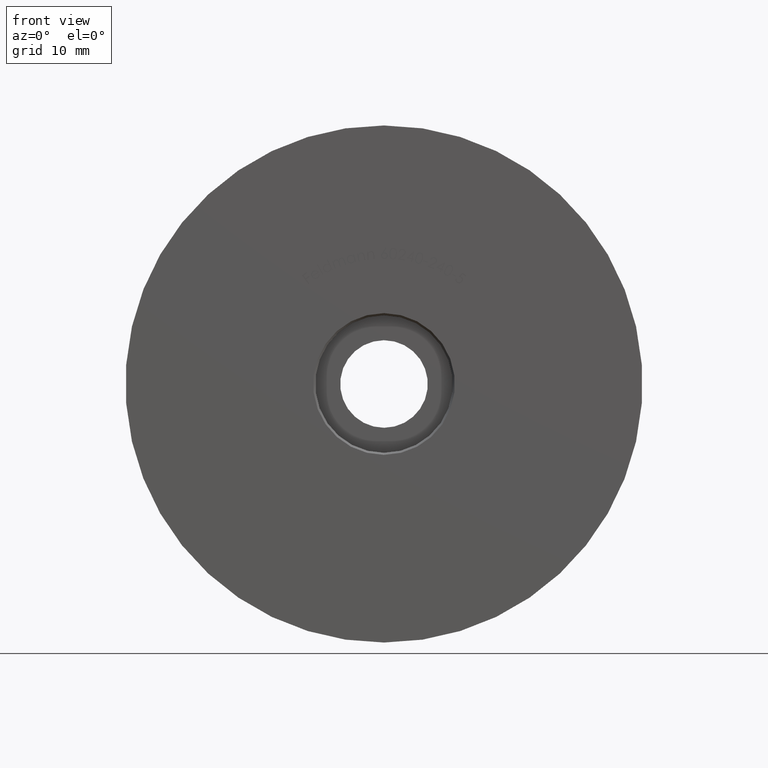
[diagram: clean part render]
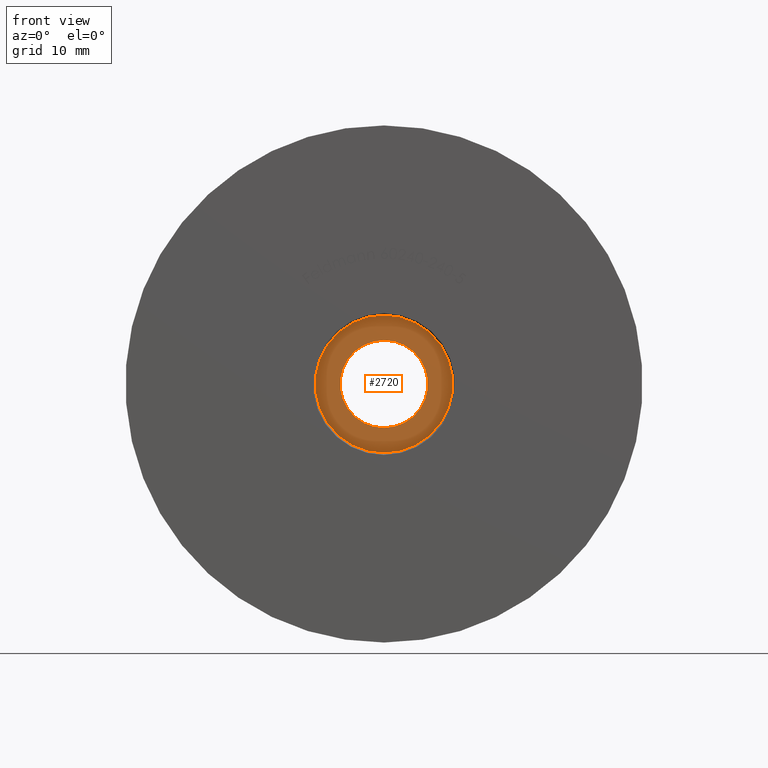
[diagram: same view with one face highlighted and labeled with its STEP entity id]
A machine part, front view. The second image highlights one B-rep face of the part: STEP entity #2720.
In plain terms, the highlighted planar face has unit normal (0, -1, 0).
Its self-contained STEP definition (entity closure, byte-faithful):
#283 = ORIENTED_EDGE ( 'NONE', *, *, #12563, .T. ) ;
#359 = CARTESIAN_POINT ( 'NONE',  ( 6.429395695523614014E-16, 2.500000000000000000, -5.250000000000007105 ) ) ;
#418 = EDGE_LOOP ( 'NONE', ( #283, #5936 ) ) ;
#978 = EDGE_CURVE ( 'NONE', #2253, #13709, #11765, .T. ) ;
#1348 = CARTESIAN_POINT ( 'NONE',  ( 0.000000000000000000, 2.500000000000000000, 0.000000000000000000 ) ) ;
#2253 = VERTEX_POINT ( 'NONE', #359 ) ;
#2653 = FACE_BOUND ( 'NONE', #418, .T. ) ;
#2720 = ADVANCED_FACE ( 'NONE', ( #2653, #4847 ), #11506, .T. ) ;
#3056 = CIRCLE ( 'NONE', #3410, 8.249999999999998224 ) ;
#3168 = DIRECTION ( 'NONE',  ( -0.000000000000000000, 1.000000000000000000, -0.000000000000000000 ) ) ;
#3410 = AXIS2_PLACEMENT_3D ( 'NONE', #12979, #3168, #9567 ) ;
#3601 = AXIS2_PLACEMENT_3D ( 'NONE', #8820, #10038, #12059 ) ;
#4019 = CIRCLE ( 'NONE', #3601, 5.250000000000007105 ) ;
#4363 = DIRECTION ( 'NONE',  ( 0.000000000000000000, 0.000000000000000000, 1.000000000000000000 ) ) ;
#4494 = EDGE_LOOP ( 'NONE', ( #13047, #8325 ) ) ;
#4847 = FACE_OUTER_BOUND ( 'NONE', #4494, .T. ) ;
#4854 = EDGE_CURVE ( 'NONE', #13510, #8729, #11560, .T. ) ;
#5619 = AXIS2_PLACEMENT_3D ( 'NONE', #10330, #8174, #12447 ) ;
#5655 = CARTESIAN_POINT ( 'NONE',  ( 0.000000000000000000, 2.500000000000000000, 8.249999999999998224 ) ) ;
#5936 = ORIENTED_EDGE ( 'NONE', *, *, #978, .T. ) ;
#6488 = DIRECTION ( 'NONE',  ( -0.000000000000000000, 1.000000000000000000, -0.000000000000000000 ) ) ;
#8174 = DIRECTION ( 'NONE',  ( 0.000000000000000000, -1.000000000000000000, 0.000000000000000000 ) ) ;
#8325 = ORIENTED_EDGE ( 'NONE', *, *, #10782, .F. ) ;
#8688 = CARTESIAN_POINT ( 'NONE',  ( 0.000000000000000000, 2.500000000000000000, 0.000000000000000000 ) ) ;
#8729 = VERTEX_POINT ( 'NONE', #13624 ) ;
#8820 = CARTESIAN_POINT ( 'NONE',  ( 0.000000000000000000, 2.500000000000000000, 0.000000000000000000 ) ) ;
#9567 = DIRECTION ( 'NONE',  ( 0.000000000000000000, 0.000000000000000000, 1.000000000000000000 ) ) ;
#10038 = DIRECTION ( 'NONE',  ( -0.000000000000000000, 1.000000000000000000, -0.000000000000000000 ) ) ;
#10330 = CARTESIAN_POINT ( 'NONE',  ( -8.249999999999998224, 2.500000000000000000, 0.000000000000000000 ) ) ;
#10782 = EDGE_CURVE ( 'NONE', #8729, #13510, #3056, .T. ) ;
#11001 = DIRECTION ( 'NONE',  ( 0.000000000000000000, 0.000000000000000000, 1.000000000000000000 ) ) ;
#11506 = PLANE ( 'NONE',  #5619 ) ;
#11560 = CIRCLE ( 'NONE', #11775, 8.249999999999998224 ) ;
#11765 = CIRCLE ( 'NONE', #12492, 5.250000000000007105 ) ;
#11775 = AXIS2_PLACEMENT_3D ( 'NONE', #1348, #13020, #11001 ) ;
#12059 = DIRECTION ( 'NONE',  ( 0.000000000000000000, 0.000000000000000000, 1.000000000000000000 ) ) ;
#12447 = DIRECTION ( 'NONE',  ( 0.000000000000000000, -0.000000000000000000, -1.000000000000000000 ) ) ;
#12492 = AXIS2_PLACEMENT_3D ( 'NONE', #8688, #6488, #4363 ) ;
#12563 = EDGE_CURVE ( 'NONE', #13709, #2253, #4019, .T. ) ;
#12691 = CARTESIAN_POINT ( 'NONE',  ( 0.000000000000000000, 2.500000000000000000, 5.250000000000007105 ) ) ;
#12979 = CARTESIAN_POINT ( 'NONE',  ( 0.000000000000000000, 2.500000000000000000, 0.000000000000000000 ) ) ;
#13020 = DIRECTION ( 'NONE',  ( -0.000000000000000000, 1.000000000000000000, -0.000000000000000000 ) ) ;
#13047 = ORIENTED_EDGE ( 'NONE', *, *, #4854, .F. ) ;
#13510 = VERTEX_POINT ( 'NONE', #5655 ) ;
#13624 = CARTESIAN_POINT ( 'NONE',  ( 1.010333609296566353E-15, 2.500000000000000000, -8.249999999999998224 ) ) ;
#13709 = VERTEX_POINT ( 'NONE', #12691 ) ;